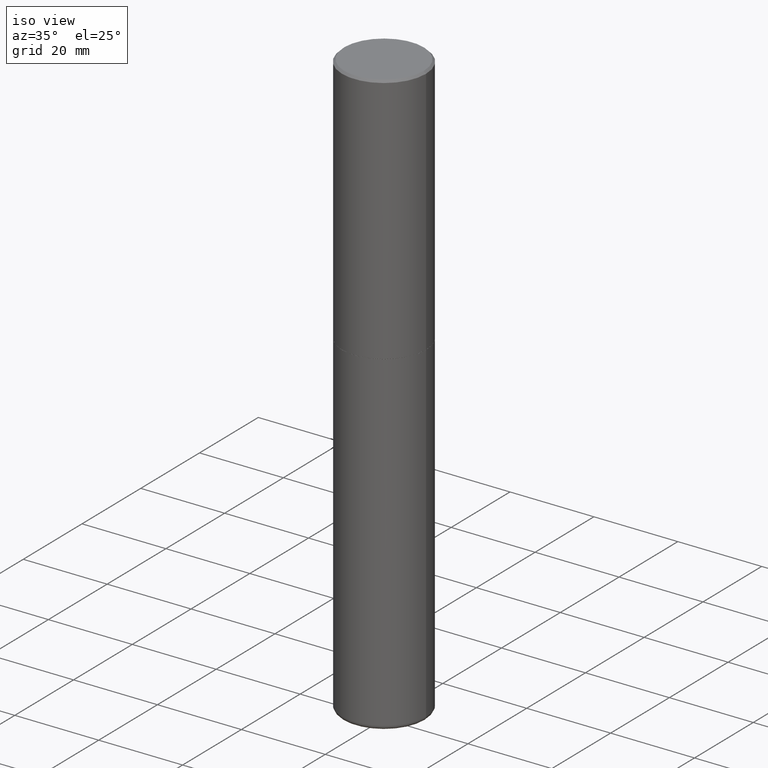
[diagram: clean part render]
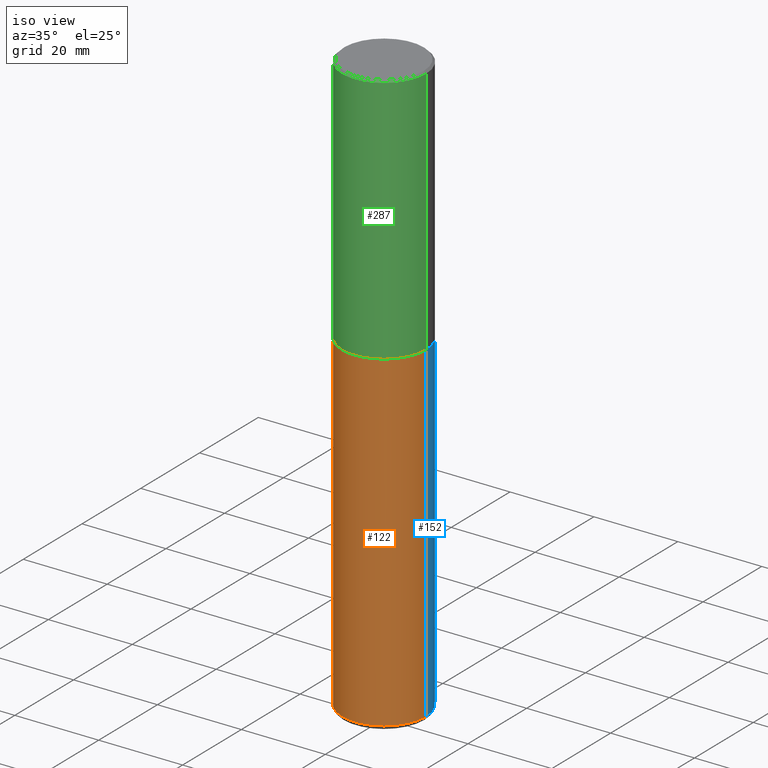
[diagram: same view with three faces highlighted in distinct colors, each labeled with its STEP entity id]
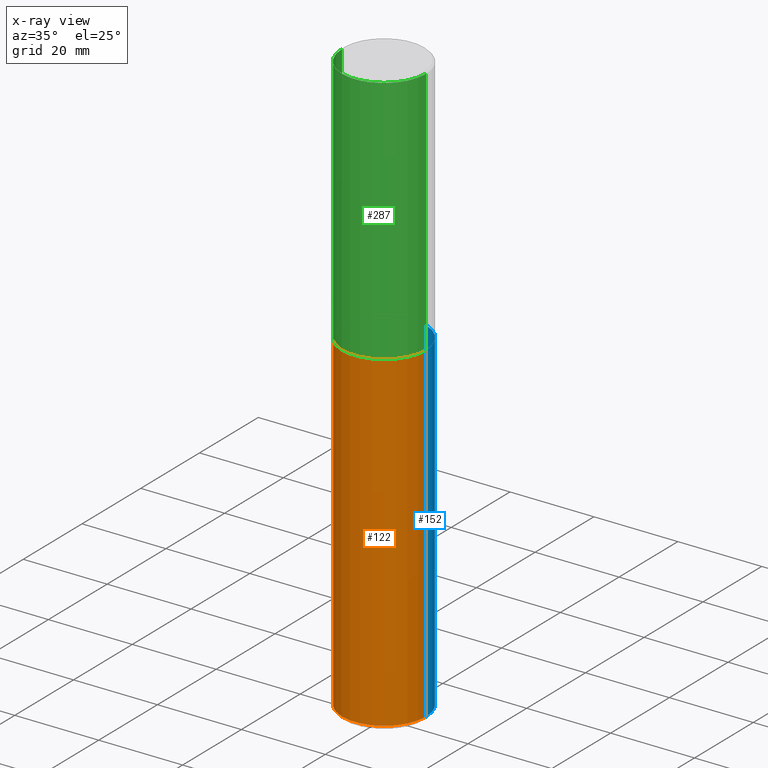
[diagram: x-ray of the same camera — body ghosted, the three highlighted faces saturated]
A machine part, iso view with three faces highlighted in distinct colors.
The next image is the same camera in x-ray (body ghosted, the three faces saturated) — at least one of them is partly hidden behind the body in this view.
Their STEP definitions:

[orange] entity #122 — the highlighted cylindrical surface (partial cylindrical patch) has radius 10 mm, axis along (-0, 0, 1).
#23 = CIRCLE ( 'NONE', #92, 0.3937000000000000499 ) ;
#42 = ORIENTED_EDGE ( 'NONE', *, *, #164, .T. ) ;
#57 = EDGE_CURVE ( 'NONE', #170, #295, #275, .T. ) ;
#67 = EDGE_LOOP ( 'NONE', ( #172, #42, #304, #143 ) ) ;
#69 = VERTEX_POINT ( 'NONE', #242 ) ;
#86 = AXIS2_PLACEMENT_3D ( 'NONE', #277, #407, #278 ) ;
#88 = CARTESIAN_POINT ( 'NONE',  ( 1.338258349496754075E-28, -1.910678247868523272E-14, -5.472400000000000375 ) ) ;
#90 = DIRECTION ( 'NONE',  ( -2.445468806185136597E-29, 3.491481338843145583E-15, 1.000000000000000000 ) ) ;
#92 = AXIS2_PLACEMENT_3D ( 'NONE', #88, #90, #293 ) ;
#100 = DIRECTION ( 'NONE',  ( 1.000000000000000000, -6.982962677686265922E-15, 4.876176775795935793E-29 ) ) ;
#114 = VECTOR ( 'NONE', #262, 39.37007874015748143 ) ;
#122 = ADVANCED_FACE ( 'NONE', ( #329 ), #159, .T. ) ;
#135 = CARTESIAN_POINT ( 'NONE',  ( 0.000000000000000000, 0.000000000000000000, 0.000000000000000000 ) ) ;
#143 = ORIENTED_EDGE ( 'NONE', *, *, #57, .F. ) ;
#150 = VECTOR ( 'NONE', #362, 39.37007874015748143 ) ;
#159 = CYLINDRICAL_SURFACE ( 'NONE', #392, 0.3937000000000000499 ) ;
#164 = EDGE_CURVE ( 'NONE', #409, #69, #23, .T. ) ;
#170 = VERTEX_POINT ( 'NONE', #387 ) ;
#172 = ORIENTED_EDGE ( 'NONE', *, *, #174, .F. ) ;
#174 = EDGE_CURVE ( 'NONE', #409, #170, #221, .T. ) ;
#198 = CARTESIAN_POINT ( 'NONE',  ( -0.3937000000000002164, -1.630937572799771557E-14, -5.472400000000000375 ) ) ;
#206 = LINE ( 'NONE', #236, #150 ) ;
#221 = LINE ( 'NONE', #229, #114 ) ;
#229 = CARTESIAN_POINT ( 'NONE',  ( -0.3937000000000000499, 2.797406750687514786E-15, -1.936584745033356735E-29 ) ) ;
#236 = CARTESIAN_POINT ( 'NONE',  ( 0.3937000000000000499, -2.749192406205083217E-15, 1.919750796630860172E-29 ) ) ;
#242 = CARTESIAN_POINT ( 'NONE',  ( 0.3937000000000002164, -2.185597488489031909E-14, -5.472400000000000375 ) ) ;
#262 = DIRECTION ( 'NONE',  ( -2.445468806185136877E-29, 3.491481338843145188E-15, 1.000000000000000000 ) ) ;
#275 = CIRCLE ( 'NONE', #86, 0.3937000000000000499 ) ;
#277 = CARTESIAN_POINT ( 'NONE',  ( 5.776686413970529753E-29, -8.247577218615279626E-15, -2.362200000000000077 ) ) ;
#278 = DIRECTION ( 'NONE',  ( 1.000000000000000000, -6.982962677686267499E-15, 0.000000000000000000 ) ) ;
#293 = DIRECTION ( 'NONE',  ( 1.000000000000000000, -6.982962677686267499E-15, 0.000000000000000000 ) ) ;
#295 = VERTEX_POINT ( 'NONE', #333 ) ;
#304 = ORIENTED_EDGE ( 'NONE', *, *, #384, .T. ) ;
#329 = FACE_OUTER_BOUND ( 'NONE', #67, .T. ) ;
#331 = DIRECTION ( 'NONE',  ( -2.445468806185136597E-29, 3.491481338843145583E-15, 1.000000000000000000 ) ) ;
#333 = CARTESIAN_POINT ( 'NONE',  ( 0.3937000000000000499, -1.099676962482036284E-14, -2.362200000000000077 ) ) ;
#362 = DIRECTION ( 'NONE',  ( -2.445468806185136877E-29, 3.491481338843145188E-15, 1.000000000000000000 ) ) ;
#384 = EDGE_CURVE ( 'NONE', #69, #295, #206, .T. ) ;
#387 = CARTESIAN_POINT ( 'NONE',  ( -0.3937000000000000499, -1.087977309796274139E-14, -2.362200000000000077 ) ) ;
#392 = AXIS2_PLACEMENT_3D ( 'NONE', #135, #331, #100 ) ;
#407 = DIRECTION ( 'NONE',  ( -2.445468806185136597E-29, 3.491481338843145583E-15, 1.000000000000000000 ) ) ;
#409 = VERTEX_POINT ( 'NONE', #198 ) ;

[blue] entity #152 — the highlighted cylindrical surface (partial cylindrical patch) has radius 10 mm, axis along (-0, 0, 1).
#5 = CIRCLE ( 'NONE', #411, 0.3937000000000000499 ) ;
#69 = VERTEX_POINT ( 'NONE', #242 ) ;
#81 = DIRECTION ( 'NONE',  ( -2.445468806185136597E-29, 3.491481338843145583E-15, 1.000000000000000000 ) ) ;
#114 = VECTOR ( 'NONE', #262, 39.37007874015748143 ) ;
#118 = DIRECTION ( 'NONE',  ( 1.000000000000000000, -6.982962677686267499E-15, 0.000000000000000000 ) ) ;
#128 = AXIS2_PLACEMENT_3D ( 'NONE', #192, #323, #386 ) ;
#131 = ORIENTED_EDGE ( 'NONE', *, *, #250, .F. ) ;
#150 = VECTOR ( 'NONE', #362, 39.37007874015748143 ) ;
#151 = DIRECTION ( 'NONE',  ( -2.445468806185136597E-29, 3.491481338843145583E-15, 1.000000000000000000 ) ) ;
#152 = ADVANCED_FACE ( 'NONE', ( #260 ), #256, .T. ) ;
#170 = VERTEX_POINT ( 'NONE', #387 ) ;
#174 = EDGE_CURVE ( 'NONE', #409, #170, #221, .T. ) ;
#187 = CARTESIAN_POINT ( 'NONE',  ( 5.776686413970529753E-29, -8.247577218615279626E-15, -2.362200000000000077 ) ) ;
#192 = CARTESIAN_POINT ( 'NONE',  ( 1.338258349496754075E-28, -1.910678247868523272E-14, -5.472400000000000375 ) ) ;
#198 = CARTESIAN_POINT ( 'NONE',  ( -0.3937000000000002164, -1.630937572799771557E-14, -5.472400000000000375 ) ) ;
#206 = LINE ( 'NONE', #236, #150 ) ;
#221 = LINE ( 'NONE', #229, #114 ) ;
#229 = CARTESIAN_POINT ( 'NONE',  ( -0.3937000000000000499, 2.797406750687514786E-15, -1.936584745033356735E-29 ) ) ;
#231 = CIRCLE ( 'NONE', #128, 0.3937000000000000499 ) ;
#236 = CARTESIAN_POINT ( 'NONE',  ( 0.3937000000000000499, -2.749192406205083217E-15, 1.919750796630860172E-29 ) ) ;
#242 = CARTESIAN_POINT ( 'NONE',  ( 0.3937000000000002164, -2.185597488489031909E-14, -5.472400000000000375 ) ) ;
#250 = EDGE_CURVE ( 'NONE', #295, #170, #5, .T. ) ;
#256 = CYLINDRICAL_SURFACE ( 'NONE', #290, 0.3937000000000000499 ) ;
#260 = FACE_OUTER_BOUND ( 'NONE', #358, .T. ) ;
#262 = DIRECTION ( 'NONE',  ( -2.445468806185136877E-29, 3.491481338843145188E-15, 1.000000000000000000 ) ) ;
#267 = ORIENTED_EDGE ( 'NONE', *, *, #384, .F. ) ;
#279 = EDGE_CURVE ( 'NONE', #69, #409, #231, .T. ) ;
#290 = AXIS2_PLACEMENT_3D ( 'NONE', #319, #151, #291 ) ;
#291 = DIRECTION ( 'NONE',  ( 1.000000000000000000, -6.982962677686265922E-15, 4.876176775795935793E-29 ) ) ;
#295 = VERTEX_POINT ( 'NONE', #333 ) ;
#297 = ORIENTED_EDGE ( 'NONE', *, *, #279, .T. ) ;
#306 = ORIENTED_EDGE ( 'NONE', *, *, #174, .T. ) ;
#319 = CARTESIAN_POINT ( 'NONE',  ( 0.000000000000000000, 0.000000000000000000, 0.000000000000000000 ) ) ;
#323 = DIRECTION ( 'NONE',  ( -2.445468806185136597E-29, 3.491481338843145583E-15, 1.000000000000000000 ) ) ;
#333 = CARTESIAN_POINT ( 'NONE',  ( 0.3937000000000000499, -1.099676962482036284E-14, -2.362200000000000077 ) ) ;
#358 = EDGE_LOOP ( 'NONE', ( #297, #306, #131, #267 ) ) ;
#362 = DIRECTION ( 'NONE',  ( -2.445468806185136877E-29, 3.491481338843145188E-15, 1.000000000000000000 ) ) ;
#384 = EDGE_CURVE ( 'NONE', #69, #295, #206, .T. ) ;
#386 = DIRECTION ( 'NONE',  ( 1.000000000000000000, -6.982962677686267499E-15, 0.000000000000000000 ) ) ;
#387 = CARTESIAN_POINT ( 'NONE',  ( -0.3937000000000000499, -1.087977309796274139E-14, -2.362200000000000077 ) ) ;
#409 = VERTEX_POINT ( 'NONE', #198 ) ;
#411 = AXIS2_PLACEMENT_3D ( 'NONE', #187, #81, #118 ) ;

[green] entity #287 — the highlighted cylindrical surface (partial cylindrical patch) has radius 10 mm, axis along (-0, 0, 1).
#2 = ORIENTED_EDGE ( 'NONE', *, *, #317, .F. ) ;
#3 = DIRECTION ( 'NONE',  ( -2.445468806185136597E-29, 3.491481338843145583E-15, 1.000000000000000000 ) ) ;
#10 = VERTEX_POINT ( 'NONE', #105 ) ;
#44 = DIRECTION ( 'NONE',  ( 1.000000000000000000, -6.982962677686266711E-15, 4.876176775795935793E-29 ) ) ;
#60 = LINE ( 'NONE', #303, #349 ) ;
#61 = VERTEX_POINT ( 'NONE', #399 ) ;
#64 = ORIENTED_EDGE ( 'NONE', *, *, #119, .T. ) ;
#83 = CYLINDRICAL_SURFACE ( 'NONE', #405, 0.3937000000000002164 ) ;
#94 = VECTOR ( 'NONE', #265, 39.37007874015748143 ) ;
#98 = VERTEX_POINT ( 'NONE', #357 ) ;
#105 = CARTESIAN_POINT ( 'NONE',  ( 0.3937000000000001054, -2.770807688499516128E-15, -0.02000000000000008715 ) ) ;
#106 = DIRECTION ( 'NONE',  ( -2.445468806185136877E-29, 3.491481338843145188E-15, 1.000000000000000000 ) ) ;
#109 = EDGE_CURVE ( 'NONE', #98, #10, #325, .T. ) ;
#119 = EDGE_CURVE ( 'NONE', #61, #98, #354, .T. ) ;
#127 = CARTESIAN_POINT ( 'NONE',  ( -0.3937000000000001054, 2.679362779428220707E-15, -0.02000000000000008715 ) ) ;
#160 = DIRECTION ( 'NONE',  ( -2.445468806185136597E-29, 3.491481338843145583E-15, 1.000000000000000000 ) ) ;
#178 = ORIENTED_EDGE ( 'NONE', *, *, #324, .F. ) ;
#190 = AXIS2_PLACEMENT_3D ( 'NONE', #391, #160, #401 ) ;
#199 = CARTESIAN_POINT ( 'NONE',  ( 0.3937000000000002164, -2.749192406205084794E-15, 1.919750796630861012E-29 ) ) ;
#204 = AXIS2_PLACEMENT_3D ( 'NONE', #339, #397, #400 ) ;
#223 = CARTESIAN_POINT ( 'NONE',  ( 0.000000000000000000, 0.000000000000000000, 0.000000000000000000 ) ) ;
#230 = ORIENTED_EDGE ( 'NONE', *, *, #109, .T. ) ;
#265 = DIRECTION ( 'NONE',  ( -2.445468806185136877E-29, 3.491481338843145188E-15, 1.000000000000000000 ) ) ;
#285 = FACE_OUTER_BOUND ( 'NONE', #363, .T. ) ;
#287 = ADVANCED_FACE ( 'NONE', ( #285 ), #83, .T. ) ;
#303 = CARTESIAN_POINT ( 'NONE',  ( -0.3937000000000002164, 2.797406750687515970E-15, -1.936584745033357576E-29 ) ) ;
#317 = EDGE_CURVE ( 'NONE', #382, #10, #368, .T. ) ;
#324 = EDGE_CURVE ( 'NONE', #61, #382, #60, .T. ) ;
#325 = LINE ( 'NONE', #199, #94 ) ;
#339 = CARTESIAN_POINT ( 'NONE',  ( 4.890937612370294178E-31, -6.982962677686321191E-17, -0.02000000000000008715 ) ) ;
#349 = VECTOR ( 'NONE', #106, 39.37007874015748143 ) ;
#354 = CIRCLE ( 'NONE', #190, 0.3937000000000002720 ) ;
#357 = CARTESIAN_POINT ( 'NONE',  ( 0.3937000000000002720, -1.099327814348151984E-14, -2.361199999999999743 ) ) ;
#363 = EDGE_LOOP ( 'NONE', ( #178, #64, #230, #2 ) ) ;
#368 = CIRCLE ( 'NONE', #204, 0.3937000000000001054 ) ;
#382 = VERTEX_POINT ( 'NONE', #127 ) ;
#391 = CARTESIAN_POINT ( 'NONE',  ( 5.774240945164344150E-29, -8.244085737276435042E-15, -2.361199999999999743 ) ) ;
#397 = DIRECTION ( 'NONE',  ( -2.445468806185136597E-29, 3.491481338843145583E-15, 1.000000000000000000 ) ) ;
#399 = CARTESIAN_POINT ( 'NONE',  ( -0.3937000000000002720, -1.359550931339130834E-15, -2.361199999999999743 ) ) ;
#400 = DIRECTION ( 'NONE',  ( 1.000000000000000000, -6.982962677686266711E-15, 0.000000000000000000 ) ) ;
#401 = DIRECTION ( 'NONE',  ( 1.000000000000000000, -6.982962677686265922E-15, 0.000000000000000000 ) ) ;
#405 = AXIS2_PLACEMENT_3D ( 'NONE', #223, #3, #44 ) ;